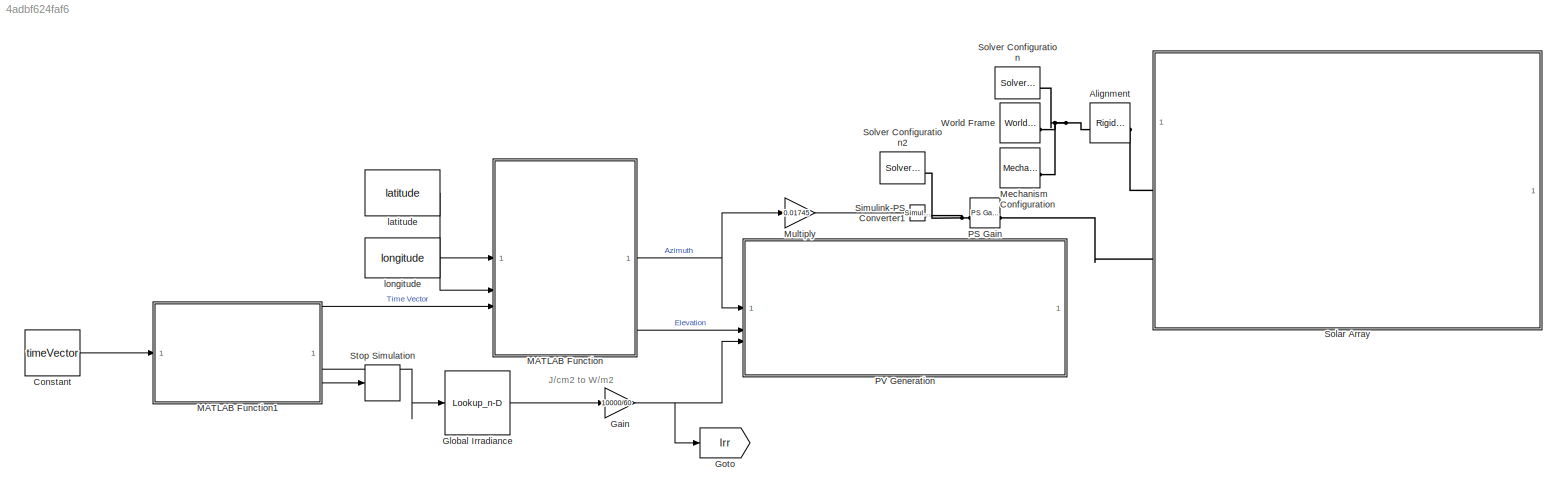
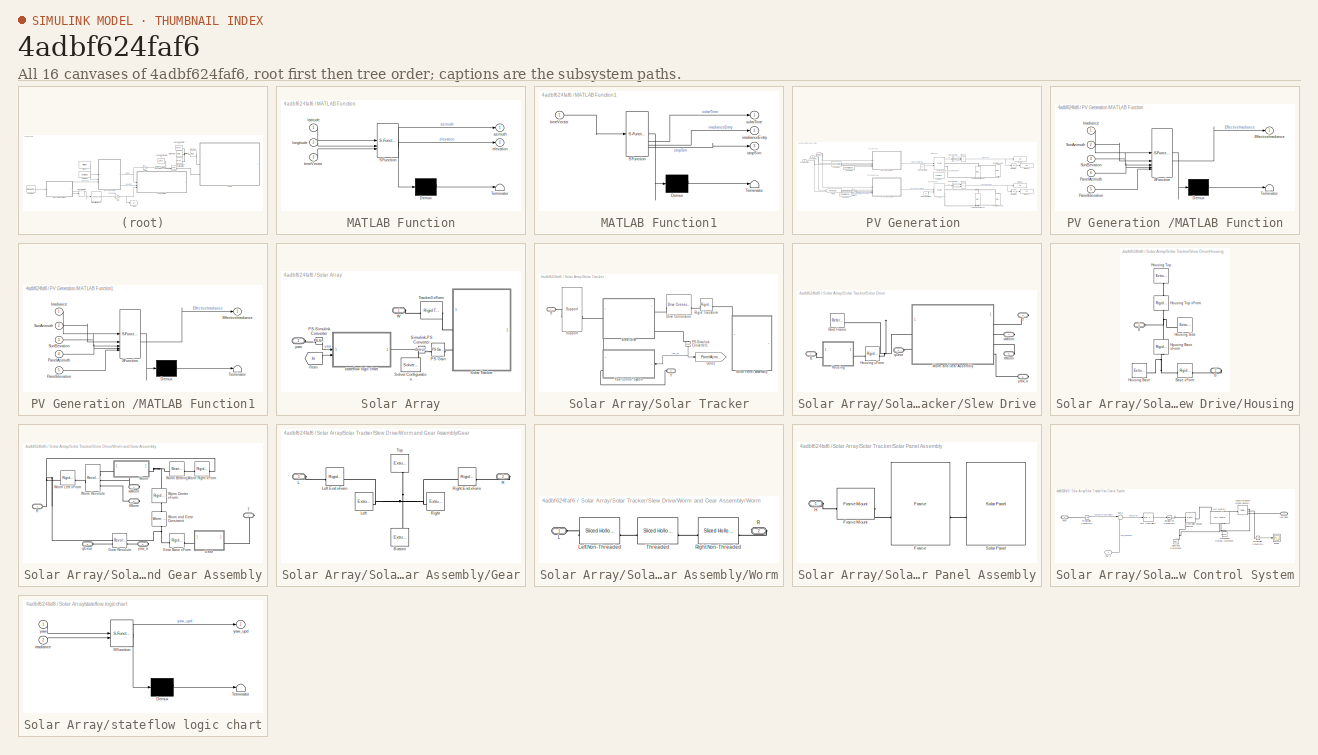
[diagram: thumbnail index - all 16 canvases of the model, root first then tree order]
MODEL slx_4adbf624faf6
KIND model
CONFIG AbsTol = auto
CONFIG EnableMultiTasking = off
CONFIG FixedStep = auto
CONFIG MaxStep = auto
CONFIG MinStep = auto
CONFIG PreLoadFcn = addpath(fullfile('WormAndGearConstraintSupport','Data'));\naddpath(fullfile('WormAndGearConstraintSupport','Scripts'));
CONFIG RelTol = 1e-3
CONFIG SampleTimeConstraint = Unconstrained
CONFIG SolverName = VariableStepAuto
CONFIG StartTime = 0.0
CONFIG StopTime = 120
WORKSPACE source: external: MATLAB File  (data not in archive)
BLOCK [Reference] Alignment  REF=sm_lib/Frames and
Transforms/Rigid
Transform
  SourceBlock = sm_lib/Frames and\nTransforms/Rigid\nTransform
  SourceType = Rigid\nTransform
BLOCK [Constant] Constant
  Value = timeVector
BLOCK [Gain] Gain
  Gain = 10000/60
BLOCK [Lookup_n-D] Global Irradiance
  BreakpointsForDimension1 = 1:length(SPN1_MinGlobal)
  InputPortMap = u0
  InternalRulePriority = Speed
  NumberOfTableDimensions = 1
  RndMeth = Simplest
  Table = SPN1_MinGlobal'
BLOCK [Goto] Goto
  GotoTag = Irr
  TagVisibility = global
BLOCK [SubSystem] MATLAB Function
  ErrorFcn = Stateflow.Translate.translate
  PermitHierarchicalResolution = ExplicitOnly
  SFBlockType = MATLAB Function
  TreatAsAtomicUnit = on
BLOCK [Demux] MATLAB Function/ Demux 
  Outputs = 1
BLOCK [S-Function] MATLAB Function/ SFunction 
  EnableBusSupport = on
  FunctionName = sf_sfun
  PortCounts = [3 3]
  SFcnIsStateOwnerBlock = off
  SFunctionDeploymentMode = off
  Tag = Stateflow S-Function 2
BLOCK [Terminator] MATLAB Function/ Terminator 
BLOCK [Outport] MATLAB Function/azimuth
BLOCK [Outport] MATLAB Function/elevation
  Port = 2
BLOCK [Inport] MATLAB Function/latitude
BLOCK [Inport] MATLAB Function/longitude
  Port = 2
BLOCK [Inport] MATLAB Function/timeVector
  Port = 3
BLOCK [SubSystem] MATLAB Function1
  ErrorFcn = Stateflow.Translate.translate
  PermitHierarchicalResolution = ExplicitOnly
  SFBlockType = MATLAB Function
  TreatAsAtomicUnit = on
BLOCK [Demux] MATLAB Function1/ Demux 
  Outputs = 1
BLOCK [S-Function] MATLAB Function1/ SFunction 
  EnableBusSupport = on
  FunctionName = sf_sfun
  PortCounts = [1 4]
  SFcnIsStateOwnerBlock = off
  SFunctionDeploymentMode = off
  Tag = Stateflow S-Function 1
BLOCK [Terminator] MATLAB Function1/ Terminator 
BLOCK [Outport] MATLAB Function1/irradianceEntry
  Port = 2
BLOCK [Outport] MATLAB Function1/solarTime
BLOCK [Outport] MATLAB Function1/stopSim
  Port = 3
BLOCK [Inport] MATLAB Function1/timeVector
BLOCK [Reference] Mechanism Configuration  REF=sm_lib/Utilities/Mechanism
Configuration
  SourceBlock = sm_lib/Utilities/Mechanism\nConfiguration
  SourceType = Mechanism\nConfiguration
BLOCK [Gain] Multiply
  Gain = 0.01745
BLOCK [Reference] PS Gain  REF=fl_lib/Physical Signals/Functions/PS Gain
  SourceBlock = fl_lib/Physical Signals/Functions/PS Gain
  SourceType = PS Gain
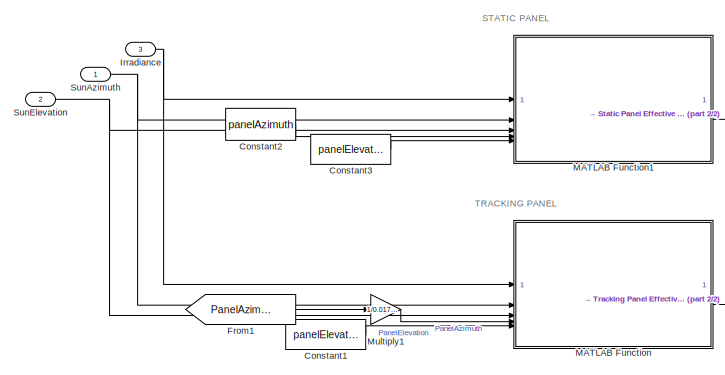
[diagram: PV Generation  - part 1/2, left side, full height]
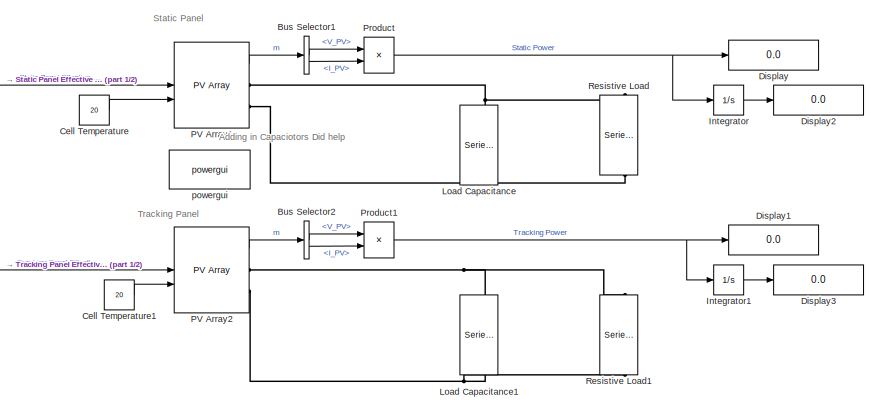
[diagram: PV Generation  - part 2/2, right side, full height]
BLOCK [SubSystem] PV Generation 
BLOCK [BusSelector] PV Generation /Bus Selector1
  OutputSignals = V_PV,I_PV
BLOCK [BusSelector] PV Generation /Bus Selector2
  OutputSignals = V_PV,I_PV
BLOCK [Constant] PV Generation /Cell Temperature
  Value = 20
BLOCK [Constant] PV Generation /Cell Temperature1
  Value = 20
BLOCK [Constant] PV Generation /Constant1
  Value = panelElevation
BLOCK [Constant] PV Generation /Constant2
  Value = panelAzimuth
BLOCK [Constant] PV Generation /Constant3
  Value = panelElevation
BLOCK [Display] PV Generation /Display
  Decimation = 1
BLOCK [Display] PV Generation /Display1
  Decimation = 1
BLOCK [Display] PV Generation /Display2
  Decimation = 1
BLOCK [Display] PV Generation /Display3
  Decimation = 1
BLOCK [From] PV Generation /From1
  GotoTag = PanelAzimuth
  NameLocation = top
  TagVisibility = global
BLOCK [Integrator] PV Generation /Integrator
BLOCK [Integrator] PV Generation /Integrator1
BLOCK [Inport] PV Generation /Irradiance
  Port = 3
BLOCK [Reference] PV Generation /Load Capacitance  REF=spsSeriesRLCBranchLib/Series RLC Branch
  LibrarySourceBlock = sps_lib/Passives/Series RLC Branch
  NameLocation = right
  SourceBlock = spsSeriesRLCBranchLib/Series RLC Branch
  SourceType = Series RLC Branch
BLOCK [Reference] PV Generation /Load Capacitance1  REF=spsSeriesRLCBranchLib/Series RLC Branch
  LibrarySourceBlock = sps_lib/Passives/Series RLC Branch
  NameLocation = right
  SourceBlock = spsSeriesRLCBranchLib/Series RLC Branch
  SourceType = Series RLC Branch
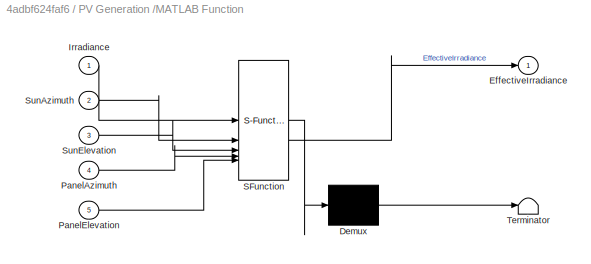
BLOCK [SubSystem] PV Generation /MATLAB Function
  ErrorFcn = Stateflow.Translate.translate
  PermitHierarchicalResolution = ExplicitOnly
  SFBlockType = MATLAB Function
  TreatAsAtomicUnit = on
BLOCK [Demux] PV Generation /MATLAB Function/ Demux 
  Outputs = 1
BLOCK [S-Function] PV Generation /MATLAB Function/ SFunction 
  EnableBusSupport = on
  FunctionName = sf_sfun
  PortCounts = [5 2]
  SFcnIsStateOwnerBlock = off
  SFunctionDeploymentMode = off
  Tag = Stateflow S-Function 6
BLOCK [Terminator] PV Generation /MATLAB Function/ Terminator 
BLOCK [Outport] PV Generation /MATLAB Function/EffectiveIrradiance
BLOCK [Inport] PV Generation /MATLAB Function/Irradiance
BLOCK [Inport] PV Generation /MATLAB Function/PanelAzimuth
  Port = 4
BLOCK [Inport] PV Generation /MATLAB Function/PanelElevation
  Port = 5
BLOCK [Inport] PV Generation /MATLAB Function/SunAzimuth
  Port = 2
BLOCK [Inport] PV Generation /MATLAB Function/SunElevation
  Port = 3
BLOCK [SubSystem] PV Generation /MATLAB Function1
  ErrorFcn = Stateflow.Translate.translate
  PermitHierarchicalResolution = ExplicitOnly
  SFBlockType = MATLAB Function
  TreatAsAtomicUnit = on
BLOCK [Demux] PV Generation /MATLAB Function1/ Demux 
  Outputs = 1
BLOCK [S-Function] PV Generation /MATLAB Function1/ SFunction 
  EnableBusSupport = on
  FunctionName = sf_sfun
  PortCounts = [5 2]
  SFcnIsStateOwnerBlock = off
  SFunctionDeploymentMode = off
  Tag = Stateflow S-Function 3
BLOCK [Terminator] PV Generation /MATLAB Function1/ Terminator 
BLOCK [Outport] PV Generation /MATLAB Function1/EffectiveIrradiance
BLOCK [Inport] PV Generation /MATLAB Function1/Irradiance
BLOCK [Inport] PV Generation /MATLAB Function1/PanelAzimuth
  Port = 4
BLOCK [Inport] PV Generation /MATLAB Function1/PanelElevation
  Port = 5
BLOCK [Inport] PV Generation /MATLAB Function1/SunAzimuth
  Port = 2
BLOCK [Inport] PV Generation /MATLAB Function1/SunElevation
  Port = 3
BLOCK [Gain] PV Generation /Multiply1
  Gain = 1/0.01745
BLOCK [Reference] PV Generation /PV Array1  REF=spsPVArrayLib/PV Array
  LibrarySourceBlock = sps_lib/Sources/PV Array
  SourceBlock = spsPVArrayLib/PV Array
  SourceType = PV array
BLOCK [Reference] PV Generation /PV Array2  REF=spsPVArrayLib/PV Array
  LibrarySourceBlock = sps_lib/Sources/PV Array
  SourceBlock = spsPVArrayLib/PV Array
  SourceType = PV array
BLOCK [Product] PV Generation /Product
BLOCK [Product] PV Generation /Product1
BLOCK [Reference] PV Generation /Resistive Load  REF=spsSeriesRLCBranchLib/Series RLC Branch
  LibrarySourceBlock = sps_lib/Passives/Series RLC Branch
  NameLocation = right
  SourceBlock = spsSeriesRLCBranchLib/Series RLC Branch
  SourceType = Series RLC Branch
BLOCK [Reference] PV Generation /Resistive Load1  REF=spsSeriesRLCBranchLib/Series RLC Branch
  LibrarySourceBlock = sps_lib/Passives/Series RLC Branch
  NameLocation = right
  SourceBlock = spsSeriesRLCBranchLib/Series RLC Branch
  SourceType = Series RLC Branch
BLOCK [Inport] PV Generation /SunAzimuth
BLOCK [Inport] PV Generation /SunElevation
  Port = 2
BLOCK [Reference] PV Generation /powergui  REF=sps_lib/powergui
  LibrarySourceBlock = sps_lib/powergui
  Priority = 1
  SourceBlock = sps_lib/powergui
  SourceType = PSB option menu block
BLOCK [Reference] Simulink-PS Converter1  REF=nesl_utility/Simulink-PS
Converter
  SourceBlock = nesl_utility/Simulink-PS\nConverter
  SourceType = Simulink-PS\nConverter
BLOCK [SubSystem] Solar Array
BLOCK [From] Solar Array/From
  GotoTag = Irr
  TagVisibility = global
BLOCK [Reference] Solar Array/PS Gain  REF=fl_lib/Physical Signals/Functions/PS Gain
  SourceBlock = fl_lib/Physical Signals/Functions/PS Gain
  SourceType = PS Gain
BLOCK [Reference] Solar Array/PS-Simulink Converter  REF=nesl_utility/PS-Simulink
Converter
  SourceBlock = nesl_utility/PS-Simulink\nConverter
  SourceType = PS-Simulink\nConverter
BLOCK [Reference] Solar Array/Simulink-PS Converter  REF=nesl_utility/Simulink-PS
Converter
  SourceBlock = nesl_utility/Simulink-PS\nConverter
  SourceType = Simulink-PS\nConverter
BLOCK [SubSystem] Solar Array/Solar Tracker
BLOCK [PMIOPort] Solar Array/Solar Tracker/B
  Side = Left
BLOCK [Reference] Solar Array/Solar Tracker/Drive Connection  REF=WormAndGearConstraintLibrary/Drive Connection
  LibrarySourceBlock = sm_solar_tracker_lib/Drive Connection
  SourceBlock = WormAndGearConstraintLibrary/Drive Connection
  SourceType = Drive Connection
BLOCK [Goto] Solar Array/Solar Tracker/Goto2
  GotoTag = PanelAzimuth
  TagVisibility = global
BLOCK [Reference] Solar Array/Solar Tracker/PS-Simulink Converter1  REF=nesl_utility/PS-Simulink
Converter
  NameLocation = left
  SourceBlock = nesl_utility/PS-Simulink\nConverter
  SourceType = PS-Simulink\nConverter
BLOCK [Reference] Solar Array/Solar Tracker/Rigid Transform  REF=sm_lib/Frames and
Transforms/Rigid
Transform
  SourceBlock = sm_lib/Frames and\nTransforms/Rigid\nTransform
  SourceType = Rigid\nTransform
BLOCK [SubSystem] Solar Array/Solar Tracker/Slew Drive
  AncestorBlock = WormAndGearConstraintLibrary/Slew Drive
  LibrarySourceBlock = sm_solar_tracker_lib/Slew Drive
BLOCK [PMIOPort] Solar Array/Solar Tracker/Slew Drive/B
  Side = Left
BLOCK [SubSystem] Solar Array/Solar Tracker/Slew Drive/Housing
BLOCK [Reference] Solar Array/Solar Tracker/Slew Drive/Housing xForm  REF=sm_lib/Frames and
Transforms/Rigid
Transform
  SourceBlock = sm_lib/Frames and\nTransforms/Rigid\nTransform
  SourceType = Rigid\nTransform
BLOCK [PMIOPort] Solar Array/Solar Tracker/Slew Drive/Housing/B
  Port = 2
  Side = Right
BLOCK [Reference] Solar Array/Solar Tracker/Slew Drive/Housing/Base xForm  REF=sm_lib/Frames and
Transforms/Rigid
Transform
  SourceBlock = sm_lib/Frames and\nTransforms/Rigid\nTransform
  SourceType = Rigid\nTransform
BLOCK [Reference] Solar Array/Solar Tracker/Slew Drive/Housing/Housing Base  REF=sm_lib/Body Elements/Extruded Solid
  SourceBlock = sm_lib/Body Elements/Extruded Solid
  SourceType = Extruded Solid
BLOCK [Reference] Solar Array/Solar Tracker/Slew Drive/Housing/Housing Base xForm  REF=sm_lib/Frames and
Transforms/Rigid
Transform
  NameLocation = left
  SourceBlock = sm_lib/Frames and\nTransforms/Rigid\nTransform
  SourceType = Rigid\nTransform
BLOCK [Reference] Solar Array/Solar Tracker/Slew Drive/Housing/Housing Side  REF=sm_lib/Body Elements/Extruded Solid
  SourceBlock = sm_lib/Body Elements/Extruded Solid
  SourceType = Extruded Solid
BLOCK [Reference] Solar Array/Solar Tracker/Slew Drive/Housing/Housing Top  REF=sm_lib/Body Elements/Extruded Solid
  NameLocation = left
  SourceBlock = sm_lib/Body Elements/Extruded Solid
  SourceType = Extruded Solid
BLOCK [Reference] Solar Array/Solar Tracker/Slew Drive/Housing/Housing Top xForm  REF=sm_lib/Frames and
Transforms/Rigid
Transform
  NameLocation = left
  SourceBlock = sm_lib/Frames and\nTransforms/Rigid\nTransform
  SourceType = Rigid\nTransform
BLOCK [PMIOPort] Solar Array/Solar Tracker/Slew Drive/Housing/S
  Side = Left
BLOCK [Reference] Solar Array/Solar Tracker/Slew Drive/Root Frame  REF=sm_lib/Frames and
Transforms/Reference
Frame
  SourceBlock = sm_lib/Frames and\nTransforms/Reference\nFrame
  SourceType = Reference\nFrame
BLOCK [PMIOPort] Solar Array/Solar Tracker/Slew Drive/T
  Port = 2
  Side = Right
BLOCK [SubSystem] Solar Array/Solar Tracker/Slew Drive/Worm and Gear Assembly
BLOCK [SubSystem] Solar Array/Solar Tracker/Slew Drive/Worm and Gear Assembly/Gear
  AncestorBlock = WormAndGearConstraintLibrary/Sliced Hollow Cylinder
BLOCK [Reference] Solar Array/Solar Tracker/Slew Drive/Worm and Gear Assembly/Gear Base xForm  REF=sm_lib/Frames and
Transforms/Rigid
Transform
  SourceBlock = sm_lib/Frames and\nTransforms/Rigid\nTransform
  SourceType = Rigid\nTransform
BLOCK [Reference] Solar Array/Solar Tracker/Slew Drive/Worm and Gear Assembly/Gear Revolute  REF=sm_lib/Joints/Revolute Joint
  SourceBlock = sm_lib/Joints/Revolute Joint
  SourceType = Revolute Joint
BLOCK [Reference] Solar Array/Solar Tracker/Slew Drive/Worm and Gear Assembly/Gear/Bottom  REF=sm_lib/Body Elements/Extruded Solid
  NameLocation = left
  SourceBlock = sm_lib/Body Elements/Extruded Solid
  SourceType = Extruded Solid
BLOCK [PMIOPort] Solar Array/Solar Tracker/Slew Drive/Worm and Gear Assembly/Gear/L
  Side = Left
BLOCK [Reference] Solar Array/Solar Tracker/Slew Drive/Worm and Gear Assembly/Gear/Left  REF=sm_lib/Body Elements/Extruded Solid
  SourceBlock = sm_lib/Body Elements/Extruded Solid
  SourceType = Extruded Solid
BLOCK [Reference] Solar Array/Solar Tracker/Slew Drive/Worm and Gear Assembly/Gear/Left End xForm  REF=sm_lib/Frames and
Transforms/Rigid
Transform
  SourceBlock = sm_lib/Frames and\nTransforms/Rigid\nTransform
  SourceType = Rigid\nTransform
BLOCK [PMIOPort] Solar Array/Solar Tracker/Slew Drive/Worm and Gear Assembly/Gear/R
  Port = 2
  Side = Right
BLOCK [Reference] Solar Array/Solar Tracker/Slew Drive/Worm and Gear Assembly/Gear/Right  REF=sm_lib/Body Elements/Extruded Solid
  SourceBlock = sm_lib/Body Elements/Extruded Solid
  SourceType = Extruded Solid
BLOCK [Reference] Solar Array/Solar Tracker/Slew Drive/Worm and Gear Assembly/Gear/Right End xForm  REF=sm_lib/Frames and
Transforms/Rigid
Transform
  SourceBlock = sm_lib/Frames and\nTransforms/Rigid\nTransform
  SourceType = Rigid\nTransform
BLOCK [Reference] Solar Array/Solar Tracker/Slew Drive/Worm and Gear Assembly/Gear/Top  REF=sm_lib/Body Elements/Extruded Solid
  NameLocation = left
  SourceBlock = sm_lib/Body Elements/Extruded Solid
  SourceType = Extruded Solid
BLOCK [PMIOPort] Solar Array/Solar Tracker/Slew Drive/Worm and Gear Assembly/R
  Side = Left
BLOCK [PMIOPort] Solar Array/Solar Tracker/Slew Drive/Worm and Gear Assembly/T
  Port = 2
  Side = Right
BLOCK [SubSystem] Solar Array/Solar Tracker/Slew Drive/Worm and Gear Assembly/Worm
BLOCK [Reference] Solar Array/Solar Tracker/Slew Drive/Worm and Gear Assembly/Worm Bearing  REF=sm_lib/Joints/Bearing Joint
  SourceBlock = sm_lib/Joints/Bearing Joint
  SourceType = Bearing Joint
BLOCK [Reference] Solar Array/Solar Tracker/Slew Drive/Worm and Gear Assembly/Worm Center xForm  REF=sm_lib/Frames and
Transforms/Rigid
Transform
  NameLocation = right
  SourceBlock = sm_lib/Frames and\nTransforms/Rigid\nTransform
  SourceType = Rigid\nTransform
BLOCK [Reference] Solar Array/Solar Tracker/Slew Drive/Worm and Gear Assembly/Worm Left xForm  REF=sm_lib/Frames and
Transforms/Rigid
Transform
  SourceBlock = sm_lib/Frames and\nTransforms/Rigid\nTransform
  SourceType = Rigid\nTransform
BLOCK [Reference] Solar Array/Solar Tracker/Slew Drive/Worm and Gear Assembly/Worm Revolute  REF=sm_lib/Joints/Revolute Joint
  SourceBlock = sm_lib/Joints/Revolute Joint
  SourceType = Revolute Joint
BLOCK [Reference] Solar Array/Solar Tracker/Slew Drive/Worm and Gear Assembly/Worm Right xForm  REF=sm_lib/Frames and
Transforms/Rigid
Transform
  SourceBlock = sm_lib/Frames and\nTransforms/Rigid\nTransform
  SourceType = Rigid\nTransform
BLOCK [Reference] Solar Array/Solar Tracker/Slew Drive/Worm and Gear Assembly/Worm and Gear Constraint  REF=sm_lib/Gears and
Couplings/Gears/Worm and Gear
Constraint
  NameLocation = right
  SourceBlock = sm_lib/Gears and\nCouplings/Gears/Worm and Gear\nConstraint
  SourceType = Worm and Gear\nConstraint
BLOCK [PMIOPort] Solar Array/Solar Tracker/Slew Drive/Worm and Gear Assembly/Worm/L
  Side = Left
BLOCK [Reference] Solar Array/Solar Tracker/Slew Drive/Worm and Gear Assembly/Worm/Left Non-Threaded  REF=WormAndGearConstraintLibrary/Sliced Hollow Cylinder
  SourceBlock = WormAndGearConstraintLibrary/Sliced Hollow Cylinder
  SourceType = Sliced Hollow Cylinder
BLOCK [PMIOPort] Solar Array/Solar Tracker/Slew Drive/Worm and Gear Assembly/Worm/R
  Port = 2
  Side = Right
BLOCK [Reference] Solar Array/Solar Tracker/Slew Drive/Worm and Gear Assembly/Worm/Right Non-Threaded  REF=WormAndGearConstraintLibrary/Sliced Hollow Cylinder
  SourceBlock = WormAndGearConstraintLibrary/Sliced Hollow Cylinder
  SourceType = Sliced Hollow Cylinder
BLOCK [Reference] Solar Array/Solar Tracker/Slew Drive/Worm and Gear Assembly/Worm/Threaded  REF=WormAndGearConstraintLibrary/Sliced Hollow Cylinder
  SourceBlock = WormAndGearConstraintLibrary/Sliced Hollow Cylinder
  SourceType = Sliced Hollow Cylinder
BLOCK [PMIOPort] Solar Array/Solar Tracker/Slew Drive/Worm and Gear Assembly/qGear
  Port = 3
  Side = Left
BLOCK [PMIOPort] Solar Array/Solar Tracker/Slew Drive/Worm and Gear Assembly/tWorm
  Port = 5
  Side = Right
BLOCK [PMIOPort] Solar Array/Solar Tracker/Slew Drive/Worm and Gear Assembly/wWorm
  Port = 4
  Side = Right
BLOCK [PMIOPort] Solar Array/Solar Tracker/Slew Drive/Worm and Gear Assembly/yaw_a
  Port = 6
  Side = Right
BLOCK [PMIOPort] Solar Array/Solar Tracker/Slew Drive/qGear
  Port = 3
  Side = Left
BLOCK [PMIOPort] Solar Array/Solar Tracker/Slew Drive/tWorm
  Port = 5
  Side = Right
BLOCK [PMIOPort] Solar Array/Solar Tracker/Slew Drive/wWorm
  Port = 4
  Side = Right
BLOCK [PMIOPort] Solar Array/Solar Tracker/Slew Drive/yaw_a
  Port = 6
  Side = Right
BLOCK [SubSystem] Solar Array/Solar Tracker/Solar Panel Assembly
  PortSchema = {"entries":[{"content":{"sides":[{"content":{},"type":"ConnectorPlacement.EquallySpacedRectSide","uuid":"28e96d6c-ced9-4b71-a480-52ac00050cb3"},{"content":{"side":"RIGHT"},"type":"ConnectorPlacement.EquallySpacedRectSide","uuid":"e73e2f6b-4ad7-4755-ba56-d634eedf4e52"},{"content":{"connectorIds":["LConn1"],"side":"TOP"},"type":"ConnectorPlacement.EquallySpacedRectSide","uuid":"ac458beb-1119-4f13-b9...<+202ch>
BLOCK [Reference] Solar Array/Solar Tracker/Solar Panel Assembly/Frame  REF=WormAndGearConstraintLibrary/Frame
  LibrarySourceBlock = sm_solar_tracker_lib/Frame
  SourceBlock = WormAndGearConstraintLibrary/Frame
  SourceType = Frame
BLOCK [Reference] Solar Array/Solar Tracker/Solar Panel Assembly/Frame Mount  REF=WormAndGearConstraintLibrary/Frame Mount
  LibrarySourceBlock = sm_solar_tracker_lib/Frame Mount
  SourceBlock = WormAndGearConstraintLibrary/Frame Mount
  SourceType = Frame Mount
BLOCK [PMIOPort] Solar Array/Solar Tracker/Solar Panel Assembly/H
  Side = Left
BLOCK [Reference] Solar Array/Solar Tracker/Solar Panel Assembly/Solar Panel  REF=WormAndGearConstraintLibrary/Solar Panel
  LibrarySourceBlock = sm_solar_tracker_lib/Solar Panel
  SourceBlock = WormAndGearConstraintLibrary/Solar Panel
  SourceType = Solar Panel
BLOCK [Reference] Solar Array/Solar Tracker/Support  REF=WormAndGearConstraintLibrary/Support
  LibrarySourceBlock = sm_solar_tracker_lib/Support
  SourceBlock = WormAndGearConstraintLibrary/Support
  SourceType = Support
BLOCK [SubSystem] Solar Array/Solar Tracker/Yaw Control System
  NameLocation = top
BLOCK [Reference] Solar Array/Solar Tracker/Yaw Control System/Controlled Voltage Source1  REF=fl_lib/Electrical/Electrical Sources/Controlled Voltage
Source
  SourceBlock = fl_lib/Electrical/Electrical Sources/Controlled Voltage\nSource
  SourceType = Controlled Voltage\nSource
BLOCK [Reference] Solar Array/Solar Tracker/Yaw Control System/DC Motor1  REF=ee_lib/Electromechanical/Brushed Motors/DC Motor
  NameLocation = right
  SourceBlock = ee_lib/Electromechanical/Brushed Motors/DC Motor
  SourceType = DC Motor
BLOCK [Reference] Solar Array/Solar Tracker/Yaw Control System/Electrical Reference1  REF=fl_lib/Electrical/Electrical Elements/Electrical Reference
  NameLocation = right
  SourceBlock = fl_lib/Electrical/Electrical Elements/Electrical Reference
  SourceType = Electrical Reference
BLOCK [Reference] Solar Array/Solar Tracker/Yaw Control System/Ideal Rotational Motion Sensor1  REF=fl_lib/Mechanical/Mechanical Sensors/Ideal Rotational
Motion Sensor
  SourceBlock = fl_lib/Mechanical/Mechanical Sensors/Ideal Rotational\nMotion Sensor
  SourceType = Ideal Rotational\nMotion Sensor
BLOCK [Reference] Solar Array/Solar Tracker/Yaw Control System/Mechanical Rotational Reference1  REF=fl_lib/Mechanical/Rotational Elements/Mechanical
Rotational Reference
  NameLocation = right
  SourceBlock = fl_lib/Mechanical/Rotational Elements/Mechanical\nRotational Reference
  SourceType = Mechanical\nRotational Reference
BLOCK [Reference] Solar Array/Solar Tracker/Yaw Control System/PID Controller2  REF=slpidlib/PID Controller
  LibrarySourceBlock = simulink/Continuous/PID Controller
  SourceBlock = slpidlib/PID Controller
  SourceType = PID 1dof
BLOCK [Reference] Solar Array/Solar Tracker/Yaw Control System/PS-Simulink Converter2  REF=nesl_utility/PS-Simulink
Converter
  SourceBlock = nesl_utility/PS-Simulink\nConverter
  SourceType = PS-Simulink\nConverter
BLOCK [Reference] Solar Array/Solar Tracker/Yaw Control System/PS-Simulink Converter4  REF=nesl_utility/PS-Simulink
Converter
  SourceBlock = nesl_utility/PS-Simulink\nConverter
  SourceType = PS-Simulink\nConverter
BLOCK [Scope] Solar Array/Solar Tracker/Yaw Control System/Scope
  Floating = off
  NumInputPorts = 1
  ScopeSpecificationString = Simulink.scopes.TimeScopeBlockCfg('CurrentConfiguration', extmgr.ConfigurationSet(extmgr.Configuration('Core','General UI',true),extmgr.Configuration('Core','Source UI',true),extmgr.Configuration('Sources','WiredSimulink',true,'DataLoggingVariableName','ScopeData1'),extmgr.Configuration('Visuals','Time Domain',true,'SerializedDisplays',{struct('MinYLimReal','-25605.92854','MaxYLimReal','30952.7704...<+1500ch>
BLOCK [Reference] Solar Array/Solar Tracker/Yaw Control System/Simulink-PS Converter2  REF=nesl_utility/Simulink-PS
Converter
  SourceBlock = nesl_utility/Simulink-PS\nConverter
  SourceType = Simulink-PS\nConverter
BLOCK [Sum] Solar Array/Solar Tracker/Yaw Control System/Sum1
  Inputs = |+-
BLOCK [PMIOPort] Solar Array/Solar Tracker/Yaw Control System/input
  Port = 2
  Side = Right
BLOCK [Inport] Solar Array/Solar Tracker/Yaw Control System/yaw_a
BLOCK [PMIOPort] Solar Array/Solar Tracker/Yaw Control System/yaw_input
  Side = Right
BLOCK [PMIOPort] Solar Array/Solar Tracker/y
  NameLocation = top
  Port = 2
  Side = Left
BLOCK [Reference] Solar Array/Solver Configuration  REF=nesl_utility/Solver
Configuration
  SourceBlock = nesl_utility/Solver\nConfiguration
  SourceType = Solver\nConfiguration
BLOCK [Reference] Solar Array/Tracker3 xForm  REF=sm_lib/Frames and
Transforms/Rigid
Transform
  SourceBlock = sm_lib/Frames and\nTransforms/Rigid\nTransform
  SourceType = Rigid\nTransform
BLOCK [PMIOPort] Solar Array/W
  Side = Left
BLOCK [SubSystem] Solar Array/stateflow logic chart
  ErrorFcn = Stateflow.Translate.translate
  PermitHierarchicalResolution = ExplicitOnly
  SFBlockType = Chart
  TreatAsAtomicUnit = on
BLOCK [Demux] Solar Array/stateflow logic chart/ Demux 
  Outputs = 1
BLOCK [S-Function] Solar Array/stateflow logic chart/ SFunction 
  EnableBusSupport = on
  FunctionName = sf_sfun
  PortCounts = [2 2]
  SFcnIsStateOwnerBlock = off
  SFunctionDeploymentMode = off
  Tag = Stateflow S-Function 4
BLOCK [Terminator] Solar Array/stateflow logic chart/ Terminator 
BLOCK [Inport] Solar Array/stateflow logic chart/irradiance
  Port = 2
BLOCK [Inport] Solar Array/stateflow logic chart/yaw
BLOCK [Outport] Solar Array/stateflow logic chart/yaw_upd
BLOCK [PMIOPort] Solar Array/yaw
  Port = 2
  Side = Left
BLOCK [Reference] Solver Configuration  REF=nesl_utility/Solver
Configuration
  SourceBlock = nesl_utility/Solver\nConfiguration
  SourceType = Solver\nConfiguration
BLOCK [Reference] Solver Configuration2  REF=nesl_utility/Solver
Configuration
  SourceBlock = nesl_utility/Solver\nConfiguration
  SourceType = Solver\nConfiguration
BLOCK [Stop] Stop Simulation
BLOCK [Reference] World Frame  REF=sm_lib/Frames and
Transforms/World Frame
  SourceBlock = sm_lib/Frames and\nTransforms/World Frame
  SourceType = World Frame
BLOCK [Constant] latitude
  Value = latitude
BLOCK [Constant] longitude
  Value = longitude
ANNOTATION (root): J/cm 2 to W/m 2
ANNOTATION PV Generation : Static Panel
ANNOTATION PV Generation : Tracking Panel
ANNOTATION PV Generation : Adding in Capaciotors Did help
ANNOTATION PV Generation : STATIC PANEL
ANNOTATION PV Generation : TRACKING PANEL
LINE Constant:1 -> MATLAB Function1:1
NET Gain:1 -> Goto:1, PV Generation :3
LINE Global Irradiance:1 -> Gain:1
LINE MATLAB Function1:1 -> MATLAB Function:3
LINE MATLAB Function1:2 -> Global Irradiance:1
LINE MATLAB Function1:3 -> Stop Simulation:1
NET MATLAB Function:1 -> Multiply:1, PV Generation :1
LINE MATLAB Function:2 -> PV Generation :2
LINE Multiply:1 -> Simulink-PS Converter1:1
LINE PV Generation /Bus Selector1:1 -> PV Generation /Product:1
LINE PV Generation /Bus Selector1:2 -> PV Generation /Product:2
LINE PV Generation /Bus Selector2:1 -> PV Generation /Product1:1
LINE PV Generation /Bus Selector2:2 -> PV Generation /Product1:2
LINE PV Generation /Cell Temperature1:1 -> PV Generation /PV Array2:2
LINE PV Generation /Cell Temperature:1 -> PV Generation /PV Array1:2
LINE PV Generation /Constant1:1 -> PV Generation /MATLAB Function:5
LINE PV Generation /Constant2:1 -> PV Generation /MATLAB Function1:4
LINE PV Generation /Constant3:1 -> PV Generation /MATLAB Function1:5
LINE PV Generation /From1:1 -> PV Generation /Multiply1:1
LINE PV Generation /Integrator1:1 -> PV Generation /Display3:1
LINE PV Generation /Integrator:1 -> PV Generation /Display2:1
NET PV Generation /Irradiance:1 -> PV Generation /MATLAB Function1:1, PV Generation /MATLAB Function:1
LINE PV Generation /MATLAB Function1:1 -> PV Generation /PV Array1:1
LINE PV Generation /MATLAB Function:1 -> PV Generation /PV Array2:1
LINE PV Generation /Multiply1:1 -> PV Generation /MATLAB Function:4
LINE PV Generation /PV Array1:1 -> PV Generation /Bus Selector1:1
LINE PV Generation /PV Array2:1 -> PV Generation /Bus Selector2:1
NET PV Generation /Product1:1 -> PV Generation /Display1:1, PV Generation /Integrator1:1
NET PV Generation /Product:1 -> PV Generation /Display:1, PV Generation /Integrator:1
NET PV Generation /SunAzimuth:1 -> PV Generation /MATLAB Function1:2, PV Generation /MATLAB Function:2
NET PV Generation /SunElevation:1 -> PV Generation /MATLAB Function1:3, PV Generation /MATLAB Function:3
LINE Solar Array/From:1 -> Solar Array/stateflow logic chart:2
LINE Solar Array/PS-Simulink Converter:1 -> Solar Array/stateflow logic chart:1
NET Solar Array/Solar Tracker/PS-Simulink Converter1:1 -> Solar Array/Solar Tracker/Goto2:1, Solar Array/Solar Tracker/Yaw Control System:1
LINE Solar Array/Solar Tracker/Yaw Control System/PID Controller2:1 -> Solar Array/Solar Tracker/Yaw Control System/Simulink-PS Converter2:1
LINE Solar Array/Solar Tracker/Yaw Control System/PS-Simulink Converter2:1 -> Solar Array/Solar Tracker/Yaw Control System/Sum1:1
LINE Solar Array/Solar Tracker/Yaw Control System/PS-Simulink Converter4:1 -> Solar Array/Solar Tracker/Yaw Control System/Scope:1
LINE Solar Array/Solar Tracker/Yaw Control System/Sum1:1 -> Solar Array/Solar Tracker/Yaw Control System/PID Controller2:1
LINE Solar Array/Solar Tracker/Yaw Control System/yaw_a:1 -> Solar Array/Solar Tracker/Yaw Control System/Sum1:2
LINE Solar Array/stateflow logic chart:1 -> Solar Array/Simulink-PS Converter:1
LINE latitude:1 -> MATLAB Function:1
LINE longitude:1 -> MATLAB Function:2
PNET net1: Alignment:LConn1 -- Mechanism Configuration:RConn1 -- Solver Configuration:RConn1 -- World Frame:RConn1
PLINE Alignment:RConn1 -- Solar Array:LConn1
PNET net2: PS Gain:LConn1 -- Simulink-PS Converter1:RConn1 -- Solver Configuration2:RConn1
PLINE PS Gain:RConn1 -- Solar Array:LConn2
PNET net3: PV Generation /Load Capacitance1:LConn1 -- PV Generation /PV Array2:RConn1 -- PV Generation /Resistive Load1:LConn1
PNET net4: PV Generation /Load Capacitance1:RConn1 -- PV Generation /PV Array2:RConn2 -- PV Generation /Resistive Load1:RConn1
PNET net5: PV Generation /Load Capacitance:LConn1 -- PV Generation /PV Array1:RConn1 -- PV Generation /Resistive Load:LConn1
PNET net6: PV Generation /Load Capacitance:RConn1 -- PV Generation /PV Array1:RConn2 -- PV Generation /Resistive Load:RConn1
PNET net7: Solar Array/PS Gain:LConn1 -- Solar Array/Simulink-PS Converter:RConn1 -- Solar Array/Solver Configuration:RConn1
PLINE Solar Array/PS Gain:RConn1 -- Solar Array/Solar Tracker:LConn2
PLINE Solar Array/PS-Simulink Converter:LConn1 -- Solar Array/yaw:RConn1
PLINE Solar Array/Solar Tracker/B:RConn1 -- Solar Array/Solar Tracker/Support:LConn1
PLINE Solar Array/Solar Tracker/Drive Connection:LConn1 -- Solar Array/Solar Tracker/Slew Drive:RConn1
PLINE Solar Array/Solar Tracker/Drive Connection:RConn1 -- Solar Array/Solar Tracker/Rigid Transform:LConn1
PLINE Solar Array/Solar Tracker/PS-Simulink Converter1:LConn1 -- Solar Array/Solar Tracker/Slew Drive:RConn4
PLINE Solar Array/Solar Tracker/Rigid Transform:RConn1 -- Solar Array/Solar Tracker/Solar Panel Assembly:LConn1
PLINE Solar Array/Solar Tracker/Slew Drive:LConn1 -- Solar Array/Solar Tracker/Support:RConn1
PLINE Solar Array/Solar Tracker/Slew Drive:LConn2 -- Solar Array/Solar Tracker/Yaw Control System:RConn1
PLINE Solar Array/Solar Tracker/Solar Panel Assembly/Frame Mount:LConn1 -- Solar Array/Solar Tracker/Solar Panel Assembly/Frame:LConn1
PLINE Solar Array/Solar Tracker/Solar Panel Assembly/Frame Mount:RConn1 -- Solar Array/Solar Tracker/Solar Panel Assembly/H:RConn1
PLINE Solar Array/Solar Tracker/Solar Panel Assembly/Frame:RConn1 -- Solar Array/Solar Tracker/Solar Panel Assembly/Solar Panel:LConn1
PLINE Solar Array/Solar Tracker/Yaw Control System/Controlled Voltage Source1:LConn1 -- Solar Array/Solar Tracker/Yaw Control System/DC Motor1:LConn1
PLINE Solar Array/Solar Tracker/Yaw Control System/Controlled Voltage Source1:RConn1 -- Solar Array/Solar Tracker/Yaw Control System/Simulink-PS Converter2:RConn1
PNET net8: Solar Array/Solar Tracker/Yaw Control System/Controlled Voltage Source1:RConn2 -- Solar Array/Solar Tracker/Yaw Control System/DC Motor1:RConn1 -- Solar Array/Solar Tracker/Yaw Control System/Electrical Reference1:LConn1
PLINE Solar Array/Solar Tracker/Yaw Control System/DC Motor1:LConn2 -- Solar Array/Solar Tracker/Yaw Control System/Ideal Rotational Motion Sensor1:LConn1
PNET net9: Solar Array/Solar Tracker/Yaw Control System/DC Motor1:RConn2 -- Solar Array/Solar Tracker/Yaw Control System/Ideal Rotational Motion Sensor1:RConn1 -- Solar Array/Solar Tracker/Yaw Control System/Mechanical Rotational Reference1:LConn1
PLINE Solar Array/Solar Tracker/Yaw Control System/Ideal Rotational Motion Sensor1:RConn2 -- Solar Array/Solar Tracker/Yaw Control System/PS-Simulink Converter4:LConn1
PLINE Solar Array/Solar Tracker/Yaw Control System/Ideal Rotational Motion Sensor1:RConn3 -- Solar Array/Solar Tracker/Yaw Control System/yaw_input:RConn1
PLINE Solar Array/Solar Tracker/Yaw Control System/PS-Simulink Converter2:LConn1 -- Solar Array/Solar Tracker/Yaw Control System/input:RConn1
PLINE Solar Array/Solar Tracker/Yaw Control System:RConn2 -- Solar Array/Solar Tracker/y:RConn1
PLINE Solar Array/Solar Tracker:LConn1 -- Solar Array/Tracker3 xForm:RConn1
PLINE Solar Array/Tracker3 xForm:LConn1 -- Solar Array/W:RConn1
note: NET lines group one-source signal fan-out (src -> all destinations, sorted); 1:1 wires keep LINE; PNET lines group multi-terminal physical nets as a canonical sorted terminal list (undirected conserving connections); 2-terminal nets keep the pairwise PLINE form
CHART MATLAB Function1 states=1 transitions=1
  STATE_LABEL 'eML_blk_kernel()'
  STATE_LABEL 'SCRIPT:\nfunction [solarTime, irradianceEntry, stopSim] = dataSync(timeVector)\n    % Sync solar position and solar irradiance with a counter \n    % using a persistent counter that increments every call.\n    persistent counter \n    % Initialize counter on first call\n    if isempty(counter)\n        counter = 1;\n    end\n    % For solarTime we still output the current time-of-day (seconds)\n    solarTim...<+455ch>'
CHART MATLAB Function states=1 transitions=1
  STATE_LABEL 'eML_blk_kernel()'
  STATE_LABEL 'SCRIPT:\nfunction [azimuth, elevation] = calculateSolarPosition(latitude, longitude, timeVector)\n    year = timeVector(1);\n    month = timeVector(2);\n    day = timeVector(3);\n    hour = timeVector(4);\n    minute = timeVector(5);\n    second = timeVector(6);\n\n    % Calculate Julian Date\n    JD = calculateJulianDate(year, month, day, hour, minute, second);\n    \n    % Calculate days since J2000.0\n    n...<+2418ch>'
CHART PV Generation /MATLAB Function1 states=1 transitions=1
  STATE_LABEL 'eML_blk_kernel()'
  STATE_LABEL 'SCRIPT:\n function EffectiveIrradiance = fcn(Irradiance,SunAzimuth,SunElevation,PanelAzimuth,PanelElevation)\n\n% Convert spherical angles to cartesian coordinates\nSunVector = [cosd(SunElevation)*sind(SunAzimuth), ...\n             cosd(SunElevation)*cosd(SunAzimuth), ...\n             sind(SunElevation)];\nPanelNormal = [cosd(PanelElevation)*sind(PanelAzimuth), ...\n               cosd(PanelElevation)*c...<+346ch>'
CHART Solar Array/stateflow logic chart states=2 transitions=3
  STATE_LABEL 'Cloudy\nentry:\nhold_yaw  = yaw ;\nduring :\nyaw_upd = hold_yaw;\nexit: \nyaw_upd = hold_yaw;\n\n'
  STATE_LABEL 'Daytime \nduring :\nyaw_upd = yaw;\n'
CHART PV Generation /MATLAB Function states=1 transitions=1
  STATE_LABEL 'eML_blk_kernel()'
  STATE_LABEL 'SCRIPT:\nfunction EffectiveIrradiance = fcn(Irradiance,SunAzimuth,SunElevation,PanelAzimuth,PanelElevation)\n\n    SunAzimuth = mod(SunAzimuth + 180, 360);\n    PanelAzimuth = mod(PanelAzimuth + 180, 360);\n\n% Convert spherical angles to cartesian coordinates\nSunVector = [cosd(SunElevation)*sind(SunAzimuth), ...\n             cosd(SunElevation)*cosd(SunAzimuth), ...\n             sind(SunElevation)];\nPan...<+440ch>'
CHART  states=0 transitions=0
CHART  states=0 transitions=0
CHART  states=0 transitions=0
CHART  states=0 transitions=0
CHART  states=0 transitions=0
